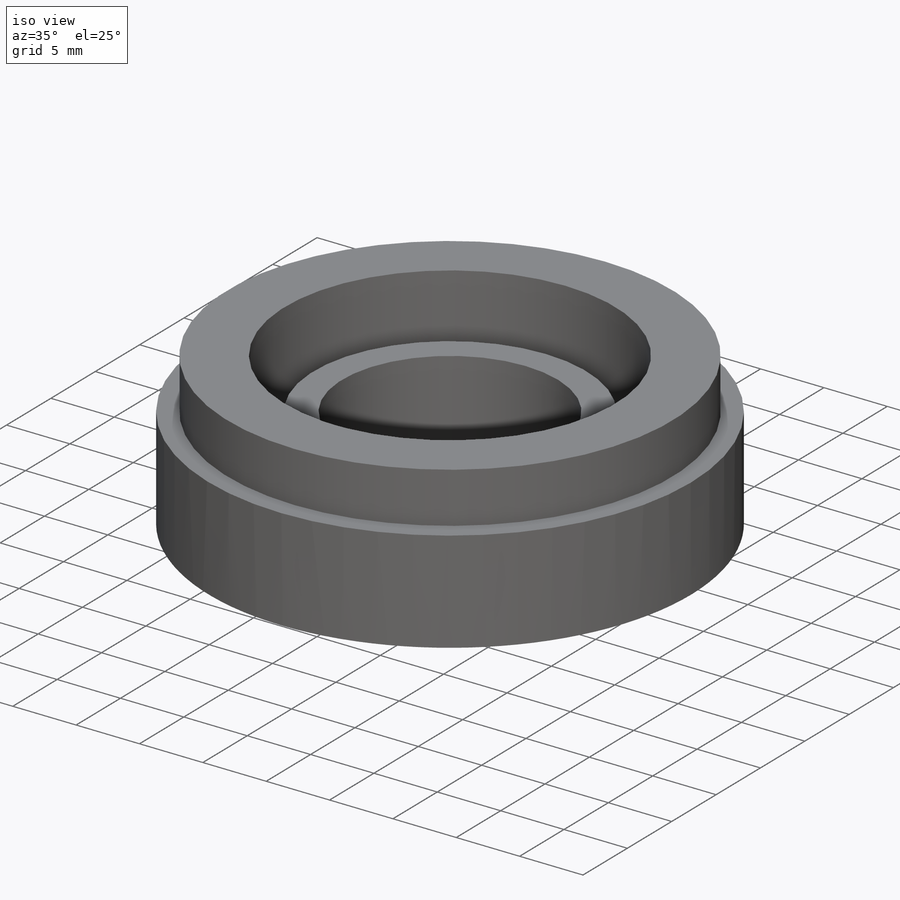
[diagram: iso view]
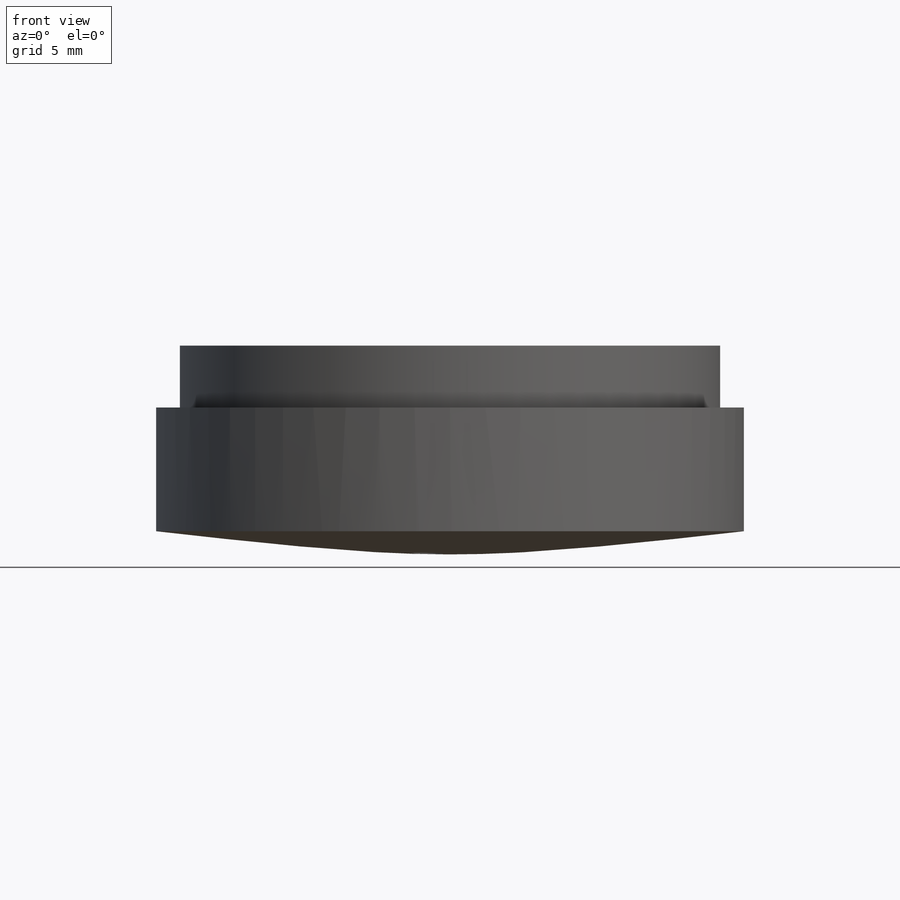
[diagram: front view]
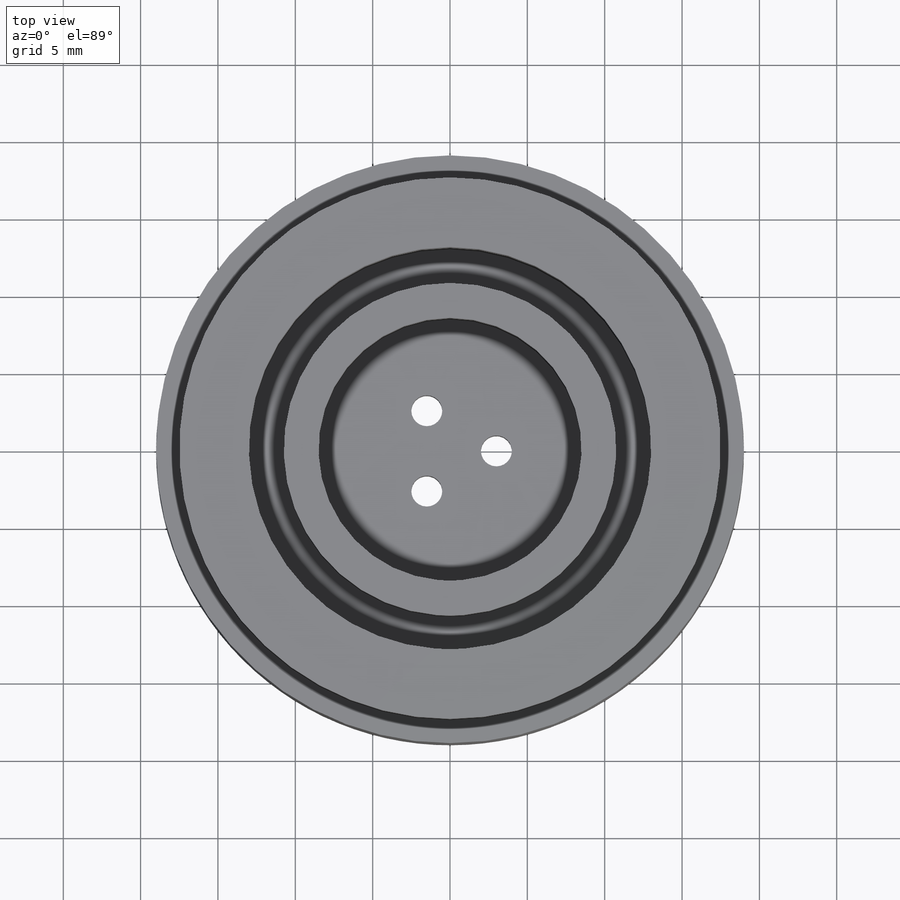
[diagram: top view]
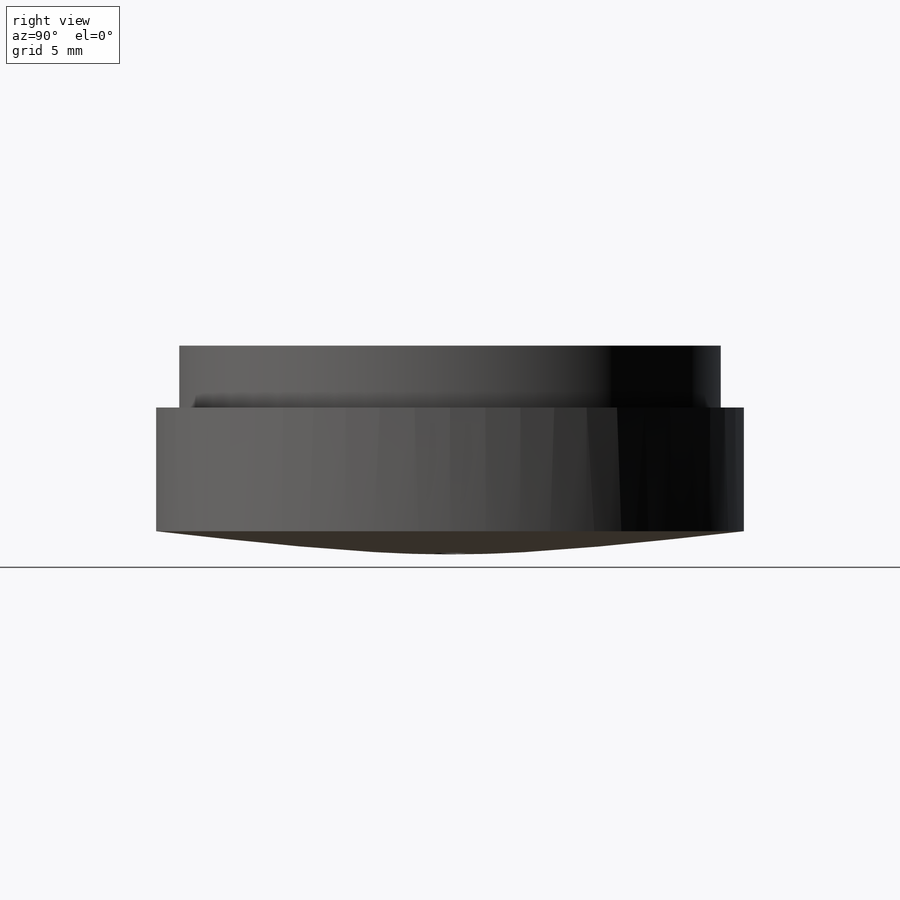
[diagram: right view]
SOLIDWORKS PART (.sldprt)
format: sldprt  version: not decoded by parser v0  size: 259,584 bytes
history: native  units: mm
features: sketch x7, cut_extrude x4, extrude x3, material x1, dome x1 (+13 scaffold rows collapsed)
feature tree (29):
  scaffold x13  (default folders/planes/origin — collapsed)
  material  "Material <not specified>"
  sketch  "Sketch1"  dims[D1=38.0mm]
  extrude  "Boss-Extrude1"  Depth=8mm
  sketch  "Sketch3"  dims[D1=12.5mm]
  extrude  "Boss-Extrude2"  Depth=4mm
  dome  "Dome2"
  sketch  "Sketch7"  dims[D1=8.0mm]
  extrude  "Boss-Extrude3"  Depth=2.5mm
  sketch  "Sketch8"  dims[c1.D1=5.0mm c1.D2=1.5mm c1.D3=4.5mm c2.D2=2.5mm c2.D1=0.75mm c3.D2=~2.715684mm c3.D3=~0.117898mm c3.D1=3.0]
  cut_extrude  "Cut-Extrude1"  Depth=8mm
  sketch  "Sketch9"  dims[D1=26.0mm]
  cut_extrude  "Cut-Extrude2"  Depth=4mm
  sketch  "Sketch10"  dims[D1=8.0mm]
  cut_extrude  "Cut-Extrude3"  Depth=6mm
  sketch  "Sketch11"  dims[D1=21.5mm]
  cut_extrude  "Cut-Extrude4"  Depth=2.5mm
decode coverage: 14 of 15 modeling features carry decoded parameters
note: ~ marks probable driven/reference dimensions
note: suppression state not decoded; provenance and decode notes live in map.json
